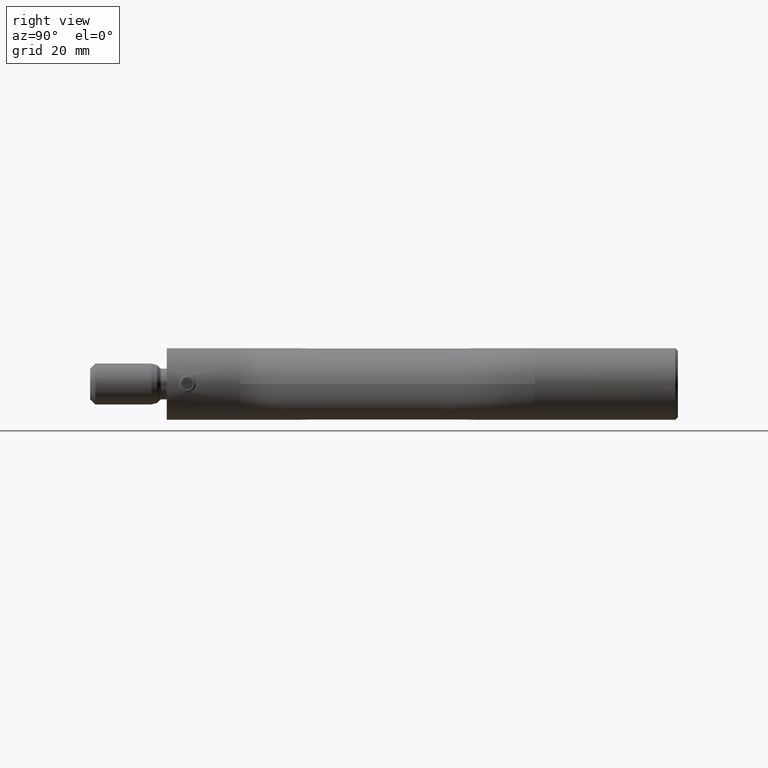
[diagram: clean part render]
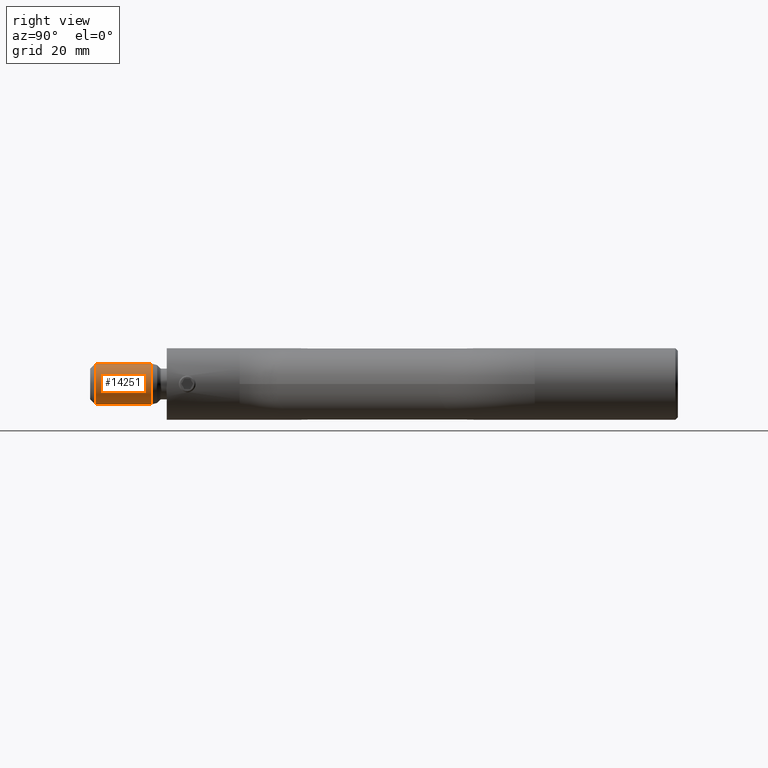
[diagram: same view with one face highlighted and labeled with its STEP entity id]
A machine part, right view. The second image highlights one B-rep face of the part: STEP entity #14251.
In plain terms, the highlighted cylindrical surface (edge-blend (fillet) strip) has radius 4 mm, axis along (-0, -1, -0).
Its self-contained STEP definition (entity closure, byte-faithful):
#1127 = CARTESIAN_POINT ( 'NONE',  ( 0.0000000000000000000, -3.000000000000004400, -4.000000000000002700 ) ) ;
#1621 = VERTEX_POINT ( 'NONE', #1127 ) ;
#2578 = CIRCLE ( 'NONE', #11249, 4.000000000000002700 ) ;
#3370 = DIRECTION ( 'NONE',  ( -0.0000000000000000000, -1.000000000000000000, -0.0000000000000000000 ) ) ;
#3577 = VERTEX_POINT ( 'NONE', #13968 ) ;
#3635 = CYLINDRICAL_SURFACE ( 'NONE', #11801, 4.000000000000001800 ) ;
#3644 = CARTESIAN_POINT ( 'NONE',  ( 0.0000000000000000000, -13.99999999999999800, 4.000000000000000000 ) ) ;
#4103 = DIRECTION ( 'NONE',  ( -0.0000000000000000000, -1.000000000000000000, -0.0000000000000000000 ) ) ;
#4233 = LINE ( 'NONE', #7926, #8949 ) ;
#4362 = DIRECTION ( 'NONE',  ( 0.0000000000000000000, 0.0000000000000000000, -1.000000000000000000 ) ) ;
#4457 = VERTEX_POINT ( 'NONE', #3644 ) ;
#4498 = DIRECTION ( 'NONE',  ( 0.0000000000000000000, 0.0000000000000000000, -1.000000000000000000 ) ) ;
#5055 = CARTESIAN_POINT ( 'NONE',  ( 4.898587196589413800E-016, -13.99999999999999800, -4.000000000000000000 ) ) ;
#5722 = DIRECTION ( 'NONE',  ( -0.0000000000000000000, -1.000000000000000000, -0.0000000000000000000 ) ) ;
#6929 = DIRECTION ( 'NONE',  ( 0.0000000000000000000, 0.0000000000000000000, -1.000000000000000000 ) ) ;
#7365 = CARTESIAN_POINT ( 'NONE',  ( 0.0000000000000000000, 0.0000000000000000000, 0.0000000000000000000 ) ) ;
#7896 = AXIS2_PLACEMENT_3D ( 'NONE', #8946, #3370, #4498 ) ;
#7926 = CARTESIAN_POINT ( 'NONE',  ( 0.0000000000000000000, 0.0000000000000000000, -4.000000000000001800 ) ) ;
#8896 = VECTOR ( 'NONE', #5722, 1000.000000000000000 ) ;
#8946 = CARTESIAN_POINT ( 'NONE',  ( 0.0000000000000000000, -13.99999999999999800, 0.0000000000000000000 ) ) ;
#8949 = VECTOR ( 'NONE', #10199, 1000.000000000000000 ) ;
#8983 = ORIENTED_EDGE ( 'NONE', *, *, #13398, .F. ) ;
#9050 = FACE_OUTER_BOUND ( 'NONE', #11080, .T. ) ;
#9088 = ORIENTED_EDGE ( 'NONE', *, *, #12678, .T. ) ;
#9136 = EDGE_CURVE ( 'NONE', #1621, #11972, #4233, .T. ) ;
#9320 = DIRECTION ( 'NONE',  ( -0.0000000000000000000, -1.000000000000000000, -0.0000000000000000000 ) ) ;
#9785 = ORIENTED_EDGE ( 'NONE', *, *, #13916, .T. ) ;
#10199 = DIRECTION ( 'NONE',  ( -0.0000000000000000000, -1.000000000000000000, -0.0000000000000000000 ) ) ;
#10286 = CARTESIAN_POINT ( 'NONE',  ( 4.898587196589415800E-016, 0.0000000000000000000, 4.000000000000001800 ) ) ;
#10398 = CARTESIAN_POINT ( 'NONE',  ( 0.0000000000000000000, -3.000000000000004400, 0.0000000000000000000 ) ) ;
#11080 = EDGE_LOOP ( 'NONE', ( #9785, #9088, #8983, #13662 ) ) ;
#11249 = AXIS2_PLACEMENT_3D ( 'NONE', #10398, #9320, #6929 ) ;
#11801 = AXIS2_PLACEMENT_3D ( 'NONE', #7365, #4103, #4362 ) ;
#11821 = LINE ( 'NONE', #10286, #8896 ) ;
#11972 = VERTEX_POINT ( 'NONE', #5055 ) ;
#12678 = EDGE_CURVE ( 'NONE', #3577, #4457, #11821, .T. ) ;
#13398 = EDGE_CURVE ( 'NONE', #11972, #4457, #13733, .T. ) ;
#13662 = ORIENTED_EDGE ( 'NONE', *, *, #9136, .F. ) ;
#13733 = CIRCLE ( 'NONE', #7896, 4.000000000000000000 ) ;
#13916 = EDGE_CURVE ( 'NONE', #1621, #3577, #2578, .T. ) ;
#13968 = CARTESIAN_POINT ( 'NONE',  ( 4.898587196589416800E-016, -3.000000000000004400, 4.000000000000002700 ) ) ;
#14251 = ADVANCED_FACE ( 'NONE', ( #9050 ), #3635, .T. ) ;